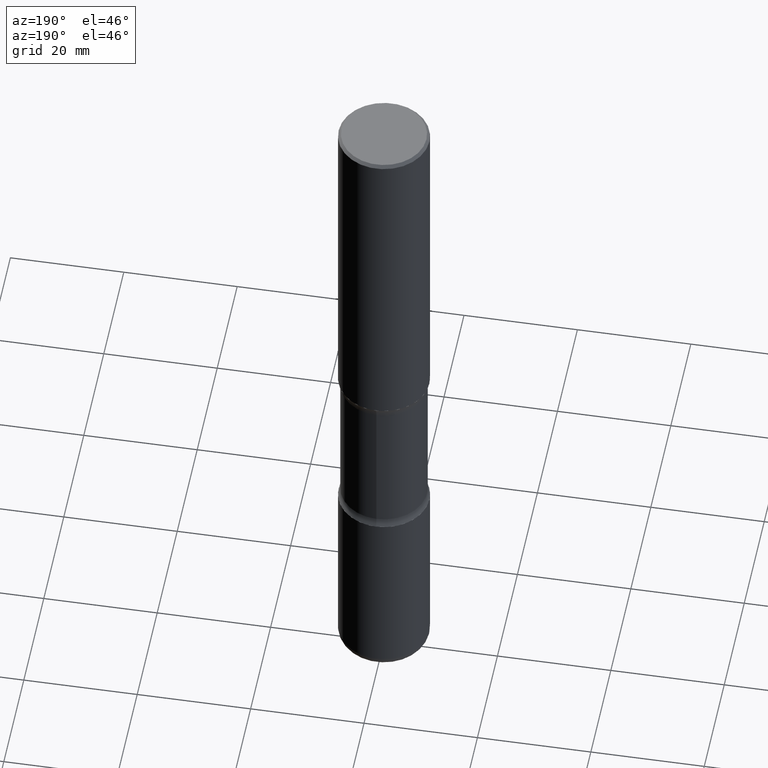
[diagram: clean part render]
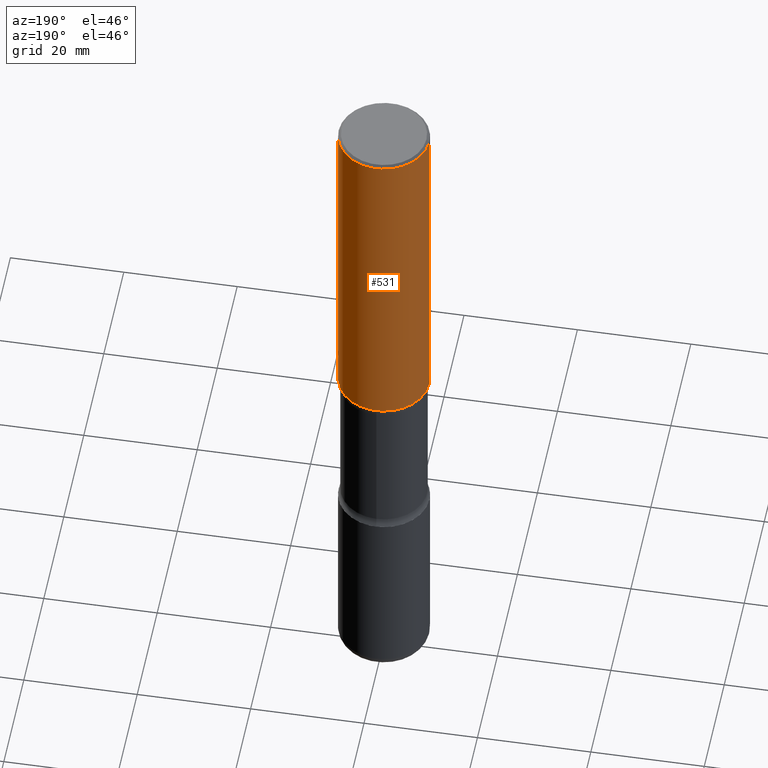
[diagram: same view with one face highlighted and labeled with its STEP entity id]
A machine part, auxiliary view. The second image highlights one B-rep face of the part: STEP entity #531.
In plain terms, the highlighted cylindrical surface (partial cylindrical patch) has radius 7.9997 mm, axis along (-0, 0, 1).
Its self-contained STEP definition (entity closure, byte-faithful):
#15 = CYLINDRICAL_SURFACE ( 'NONE', #99, 0.3149500000000000077 ) ;
#18 = DIRECTION ( 'NONE',  ( -2.445468806185136597E-29, 3.491481338843145583E-15, 1.000000000000000000 ) ) ;
#44 = EDGE_CURVE ( 'NONE', #63, #159, #513, .T. ) ;
#51 = CARTESIAN_POINT ( 'NONE',  ( 0.3149500000000000077, -2.199284095337289871E-15, 1.535751875536930130E-29 ) ) ;
#55 = DIRECTION ( 'NONE',  ( -2.445468806185136877E-29, 3.491481338843145188E-15, 1.000000000000000000 ) ) ;
#63 = VERTEX_POINT ( 'NONE', #108 ) ;
#78 = EDGE_CURVE ( 'NONE', #124, #159, #350, .T. ) ;
#92 = DIRECTION ( 'NONE',  ( 1.000000000000000000, -6.982962677686265922E-15, 0.000000000000000000 ) ) ;
#99 = AXIS2_PLACEMENT_3D ( 'NONE', #495, #18, #287 ) ;
#104 = VERTEX_POINT ( 'NONE', #554 ) ;
#108 = CARTESIAN_POINT ( 'NONE',  ( -0.3149500000000001743, -1.989631258794842718E-15, -2.401600000000000623 ) ) ;
#124 = VERTEX_POINT ( 'NONE', #460 ) ;
#159 = VERTEX_POINT ( 'NONE', #307 ) ;
#188 = AXIS2_PLACEMENT_3D ( 'NONE', #317, #348, #92 ) ;
#263 = EDGE_LOOP ( 'NONE', ( #467, #432, #528, #366 ) ) ;
#287 = DIRECTION ( 'NONE',  ( 1.000000000000000000, -6.982962677686266711E-15, 4.876176775795936353E-29 ) ) ;
#307 = CARTESIAN_POINT ( 'NONE',  ( -0.3149499999999998967, 2.129454468560425784E-15, -0.02000000000000006981 ) ) ;
#315 = AXIS2_PLACEMENT_3D ( 'NONE', #355, #397, #392 ) ;
#317 = CARTESIAN_POINT ( 'NONE',  ( 4.890937612370289799E-31, -6.982962677686315028E-17, -0.02000000000000006981 ) ) ;
#327 = EDGE_CURVE ( 'NONE', #104, #63, #335, .T. ) ;
#335 = CIRCLE ( 'NONE', #315, 0.3149500000000001743 ) ;
#348 = DIRECTION ( 'NONE',  ( -2.445468806185136597E-29, 3.491481338843145583E-15, 1.000000000000000000 ) ) ;
#350 = CIRCLE ( 'NONE', #188, 0.3149499999999998967 ) ;
#355 = CARTESIAN_POINT ( 'NONE',  ( 5.873037884934225470E-29, -8.385141583365698841E-15, -2.401600000000000623 ) ) ;
#366 = ORIENTED_EDGE ( 'NONE', *, *, #423, .F. ) ;
#385 = VECTOR ( 'NONE', #400, 39.37007874015748143 ) ;
#392 = DIRECTION ( 'NONE',  ( 1.000000000000000000, -6.982962677686265922E-15, 0.000000000000000000 ) ) ;
#397 = DIRECTION ( 'NONE',  ( -2.445468806185136597E-29, 3.491481338843145583E-15, 1.000000000000000000 ) ) ;
#400 = DIRECTION ( 'NONE',  ( -2.445468806185136877E-29, 3.491481338843145188E-15, 1.000000000000000000 ) ) ;
#423 = EDGE_CURVE ( 'NONE', #104, #124, #443, .T. ) ;
#432 = ORIENTED_EDGE ( 'NONE', *, *, #44, .T. ) ;
#443 = LINE ( 'NONE', #51, #385 ) ;
#452 = VECTOR ( 'NONE', #55, 39.37007874015748143 ) ;
#460 = CARTESIAN_POINT ( 'NONE',  ( 0.3149499999999998967, -2.230543471175006266E-15, -0.02000000000000006981 ) ) ;
#461 = CARTESIAN_POINT ( 'NONE',  ( -0.3149500000000000077, 2.237854346276435590E-15, -1.549218606675782676E-29 ) ) ;
#467 = ORIENTED_EDGE ( 'NONE', *, *, #327, .T. ) ;
#495 = CARTESIAN_POINT ( 'NONE',  ( 0.000000000000000000, 0.000000000000000000, 0.000000000000000000 ) ) ;
#513 = LINE ( 'NONE', #461, #452 ) ;
#526 = FACE_OUTER_BOUND ( 'NONE', #263, .T. ) ;
#528 = ORIENTED_EDGE ( 'NONE', *, *, #78, .F. ) ;
#531 = ADVANCED_FACE ( 'NONE', ( #526 ), #15, .T. ) ;
#554 = CARTESIAN_POINT ( 'NONE',  ( 0.3149500000000001743, -1.058442567870299029E-14, -2.401600000000000623 ) ) ;